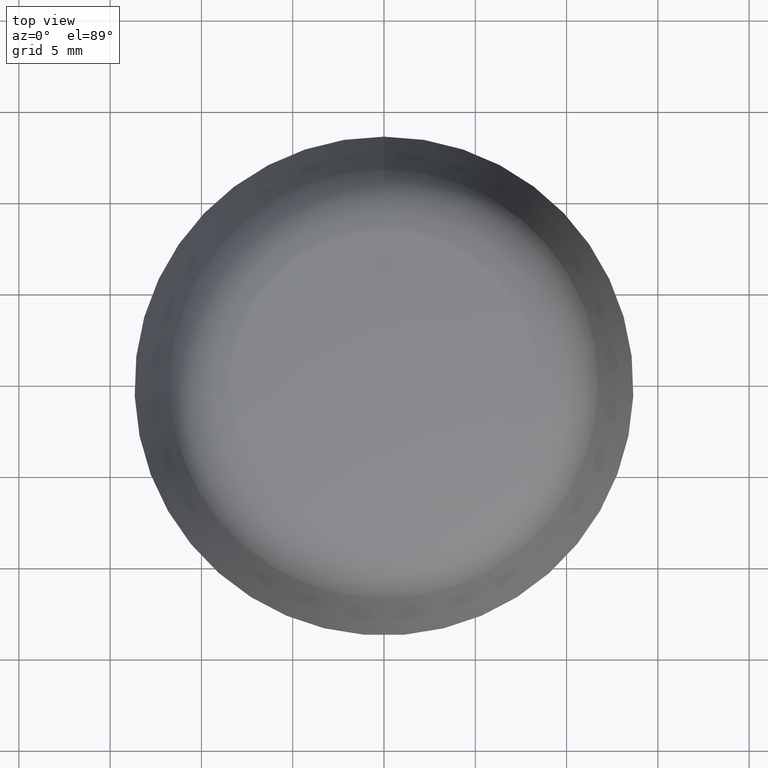
[diagram: clean part render]
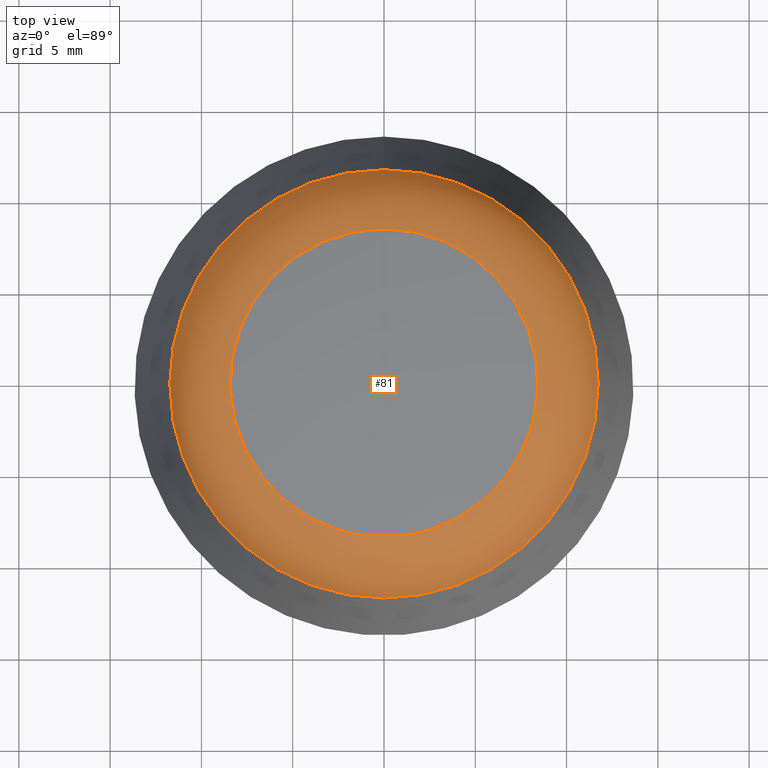
[diagram: same view with one face highlighted and labeled with its STEP entity id]
A machine part, top view. The second image highlights one B-rep face of the part: STEP entity #81.
In plain terms, the highlighted toroidal blend (fillet) surface has major radius 7.8673 mm and minor (blend) radius 4 mm.
Its self-contained STEP definition (entity closure, byte-faithful):
#81 = ADVANCED_FACE( '', ( #102, #103 ), #104, .T. );
#102 = FACE_OUTER_BOUND( '', #162, .T. );
#103 = FACE_OUTER_BOUND( '', #163, .T. );
#104 = TOROIDAL_SURFACE( '', #164, 7.86731714795839, 4.00000000000000 );
#162 = EDGE_LOOP( '', ( #197 ) );
#163 = EDGE_LOOP( '', ( #198 ) );
#164 = AXIS2_PLACEMENT_3D( '', #199, #200, #201 );
#197 = ORIENTED_EDGE( '', *, *, #213, .T. );
#198 = ORIENTED_EDGE( '', *, *, #219, .F. );
#199 = CARTESIAN_POINT( '', ( 0.000000000000000, 0.000000000000000, 6.18417334746427 ) );
#200 = DIRECTION( '', ( 0.000000000000000, -6.12303176911189E-017, -1.00000000000000 ) );
#201 = DIRECTION( '', ( 0.000000000000000, 1.00000000000000, -6.12303176911189E-017 ) );
#213 = EDGE_CURVE( '', #221, #221, #222, .T. );
#219 = EDGE_CURVE( '', #233, #233, #234, .T. );
#221 = VERTEX_POINT( '', #237 );
#222 = CIRCLE( '', #238, 8.43662452578652 );
#233 = VERTEX_POINT( '', #249 );
#234 = CIRCLE( '', #250, 11.7310204531147 );
#237 = CARTESIAN_POINT( '', ( 0.000000000000000, 8.43662452578652, 10.1434522097763 ) );
#238 = AXIS2_PLACEMENT_3D( '', #253, #254, #255 );
#249 = CARTESIAN_POINT( '', ( 0.000000000000000, 11.7310204531147, 7.21944952787435 ) );
#250 = AXIS2_PLACEMENT_3D( '', #271, #272, #273 );
#253 = CARTESIAN_POINT( '', ( 0.000000000000000, 1.00629100914771E-016, 10.1434522097763 ) );
#254 = DIRECTION( '', ( 0.000000000000000, -6.12303176911189E-017, -1.00000000000000 ) );
#255 = DIRECTION( '', ( 0.000000000000000, 1.00000000000000, -6.12303176911189E-017 ) );
#271 = CARTESIAN_POINT( '', ( 0.000000000000000, -7.84085122277661E-017, 7.21944952787435 ) );
#272 = DIRECTION( '', ( 0.000000000000000, -6.12303176911189E-017, -1.00000000000000 ) );
#273 = DIRECTION( '', ( 0.000000000000000, 1.00000000000000, -6.12303176911189E-017 ) );